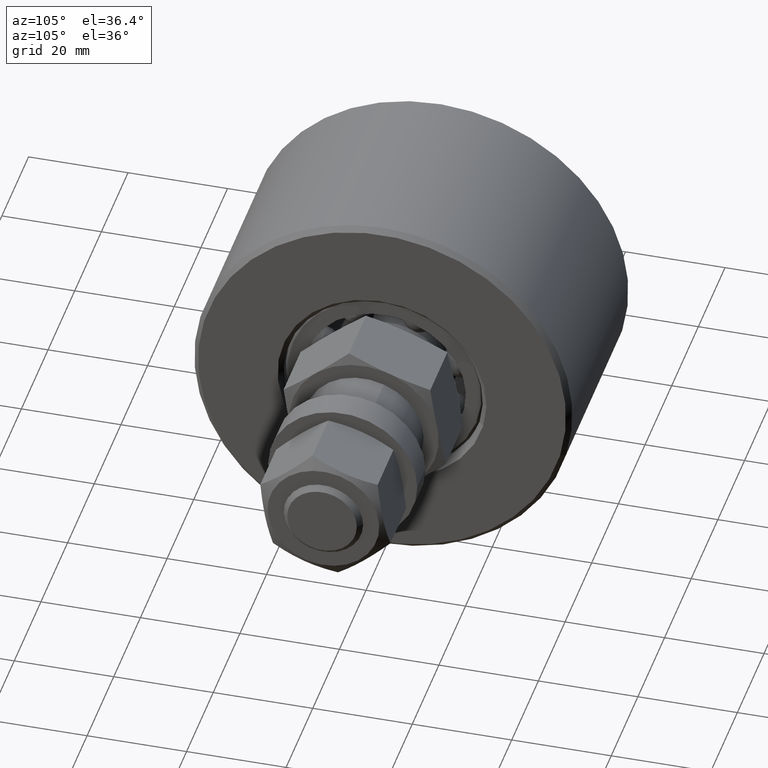
[diagram: clean part render]
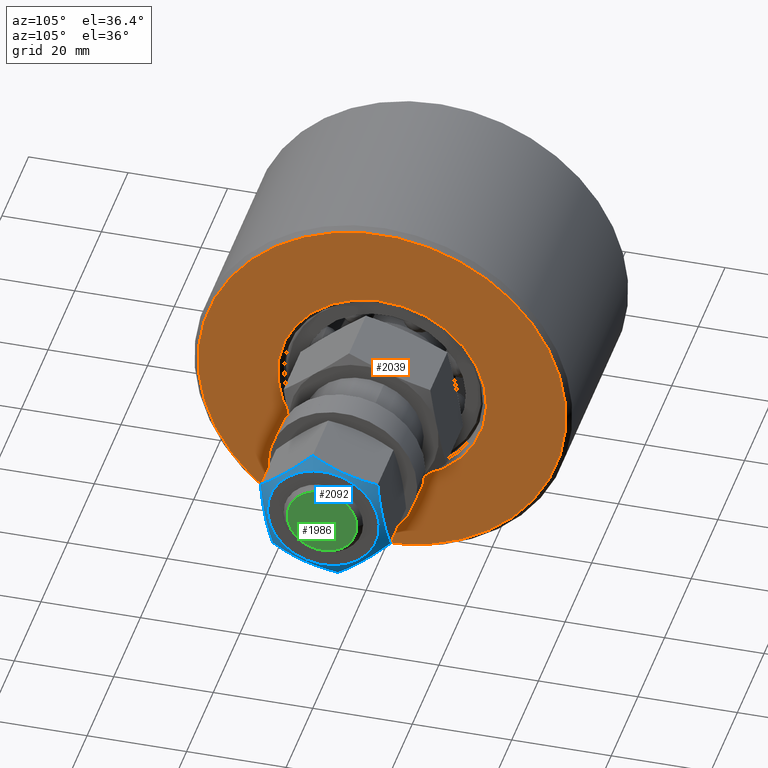
[diagram: same view with three faces highlighted in distinct colors, each labeled with its STEP entity id]
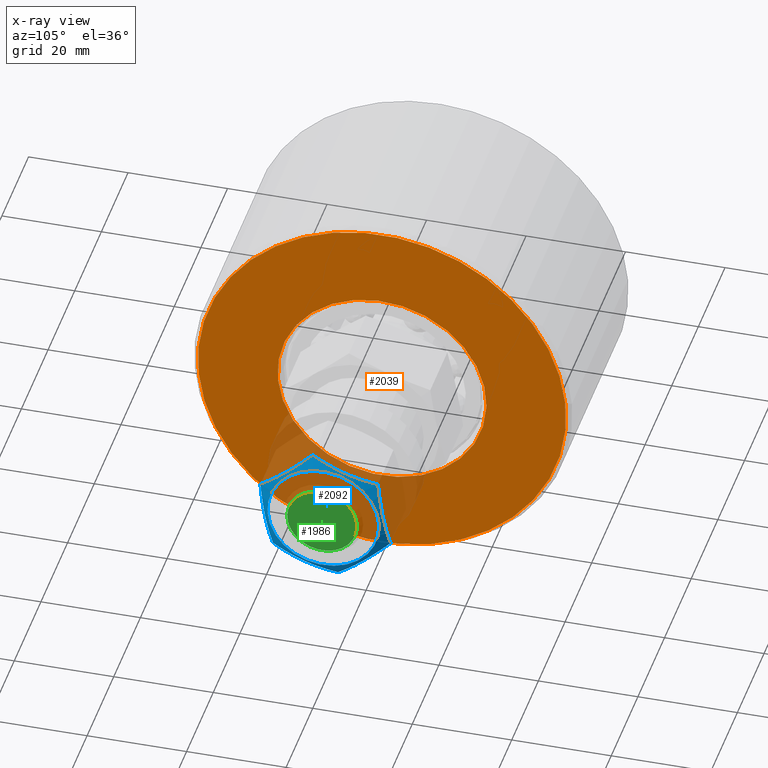
[diagram: x-ray of the same camera — body ghosted, the three highlighted faces saturated]
A machine part, auxiliary view with three faces highlighted in distinct colors.
The next image is the same camera in x-ray (body ghosted, the three faces saturated) — at least one of them is partly hidden behind the body in this view.
Their STEP definitions:

[orange] entity #2039 — the highlighted planar face has unit normal (1, 0, 0).
#165=FACE_BOUND('',#472,.T.);
#255=PLANE('',#2375);
#347=FACE_OUTER_BOUND('',#471,.T.);
#471=EDGE_LOOP('',(#1609));
#472=EDGE_LOOP('',(#1610));
#756=CIRCLE('',#2374,21.);
#757=CIRCLE('',#2376,37.);
#923=VERTEX_POINT('',#3464);
#924=VERTEX_POINT('',#3468);
#1177=EDGE_CURVE('',#923,#923,#756,.T.);
#1178=EDGE_CURVE('',#924,#924,#757,.T.);
#1609=ORIENTED_EDGE('',*,*,#1178,.F.);
#1610=ORIENTED_EDGE('',*,*,#1177,.F.);
#2039=ADVANCED_FACE('',(#347,#165),#255,.T.);
#2374=AXIS2_PLACEMENT_3D('',#3466,#2799,#2800);
#2375=AXIS2_PLACEMENT_3D('',#3467,#2801,#2802);
#2376=AXIS2_PLACEMENT_3D('',#3469,#2803,#2804);
#2799=DIRECTION('center_axis',(1.,0.,0.));
#2800=DIRECTION('ref_axis',(0.,-1.,0.));
#2801=DIRECTION('center_axis',(1.,0.,0.));
#2802=DIRECTION('ref_axis',(0.,0.,-1.));
#2803=DIRECTION('center_axis',(-1.,0.,0.));
#2804=DIRECTION('ref_axis',(0.,-1.,0.));
#3464=CARTESIAN_POINT('',(22.,21.,2.57175827820944E-15));
#3466=CARTESIAN_POINT('Origin',(22.,0.,0.));
#3467=CARTESIAN_POINT('Origin',(22.,29.,0.));
#3468=CARTESIAN_POINT('',(22.,37.,-4.53119315684521E-15));
#3469=CARTESIAN_POINT('Origin',(22.,0.,0.));

[blue] entity #2092 — the highlighted conical surface has half-angle 60 deg.
#226=(
BOUNDED_CURVE()
B_SPLINE_CURVE(2,(#4553,#4554,#4555),.UNSPECIFIED.,.F.,.F.)
B_SPLINE_CURVE_WITH_KNOTS((3,3),(0.,1.40212336569351),.UNSPECIFIED.)
CURVE()
GEOMETRIC_REPRESENTATION_ITEM()
RATIONAL_B_SPLINE_CURVE((1.,1.15470053837925,1.))
REPRESENTATION_ITEM('')
);
#227=(
BOUNDED_CURVE()
B_SPLINE_CURVE(2,(#4557,#4558,#4559),.UNSPECIFIED.,.F.,.F.)
B_SPLINE_CURVE_WITH_KNOTS((3,3),(0.,1.4021233656935),.UNSPECIFIED.)
CURVE()
GEOMETRIC_REPRESENTATION_ITEM()
RATIONAL_B_SPLINE_CURVE((1.,1.15470053837925,1.))
REPRESENTATION_ITEM('')
);
#228=(
BOUNDED_CURVE()
B_SPLINE_CURVE(2,(#4561,#4562,#4563),.UNSPECIFIED.,.F.,.F.)
B_SPLINE_CURVE_WITH_KNOTS((3,3),(0.,1.4021233656935),.UNSPECIFIED.)
CURVE()
GEOMETRIC_REPRESENTATION_ITEM()
RATIONAL_B_SPLINE_CURVE((1.,1.15470053837925,1.))
REPRESENTATION_ITEM('')
);
#229=(
BOUNDED_CURVE()
B_SPLINE_CURVE(2,(#4565,#4566,#4567),.UNSPECIFIED.,.F.,.F.)
B_SPLINE_CURVE_WITH_KNOTS((3,3),(0.,1.40212336569351),.UNSPECIFIED.)
CURVE()
GEOMETRIC_REPRESENTATION_ITEM()
RATIONAL_B_SPLINE_CURVE((1.,1.15470053837925,1.))
REPRESENTATION_ITEM('')
);
#230=(
BOUNDED_CURVE()
B_SPLINE_CURVE(2,(#4569,#4570,#4571),.UNSPECIFIED.,.F.,.F.)
B_SPLINE_CURVE_WITH_KNOTS((3,3),(0.,1.40212336569351),.UNSPECIFIED.)
CURVE()
GEOMETRIC_REPRESENTATION_ITEM()
RATIONAL_B_SPLINE_CURVE((1.,1.15470053837925,1.))
REPRESENTATION_ITEM('')
);
#231=(
BOUNDED_CURVE()
B_SPLINE_CURVE(2,(#4572,#4573,#4574),.UNSPECIFIED.,.F.,.F.)
B_SPLINE_CURVE_WITH_KNOTS((3,3),(0.,1.40212336569351),.UNSPECIFIED.)
CURVE()
GEOMETRIC_REPRESENTATION_ITEM()
RATIONAL_B_SPLINE_CURVE((1.,1.15470053837925,1.))
REPRESENTATION_ITEM('')
);
#400=FACE_OUTER_BOUND('',#549,.T.);
#549=EDGE_LOOP('',(#1921,#1922,#1923,#1924,#1925,#1926,#1927,#1928,#1929));
#623=LINE('',#4551,#697);
#697=VECTOR('',#3088,12.5532032302755);
#834=CIRCLE('',#2507,11.25);
#1032=VERTEX_POINT('',#4521);
#1039=VERTEX_POINT('',#4550);
#1040=VERTEX_POINT('',#4552);
#1041=VERTEX_POINT('',#4556);
#1042=VERTEX_POINT('',#4560);
#1043=VERTEX_POINT('',#4564);
#1044=VERTEX_POINT('',#4568);
#1327=EDGE_CURVE('',#1032,#1032,#834,.T.);
#1335=EDGE_CURVE('',#1032,#1039,#623,.T.);
#1336=EDGE_CURVE('',#1040,#1039,#226,.T.);
#1337=EDGE_CURVE('',#1041,#1040,#227,.T.);
#1338=EDGE_CURVE('',#1042,#1041,#228,.T.);
#1339=EDGE_CURVE('',#1043,#1042,#229,.T.);
#1340=EDGE_CURVE('',#1044,#1043,#230,.T.);
#1341=EDGE_CURVE('',#1039,#1044,#231,.T.);
#1921=ORIENTED_EDGE('',*,*,#1327,.F.);
#1922=ORIENTED_EDGE('',*,*,#1335,.T.);
#1923=ORIENTED_EDGE('',*,*,#1336,.F.);
#1924=ORIENTED_EDGE('',*,*,#1337,.F.);
#1925=ORIENTED_EDGE('',*,*,#1338,.F.);
#1926=ORIENTED_EDGE('',*,*,#1339,.F.);
#1927=ORIENTED_EDGE('',*,*,#1340,.F.);
#1928=ORIENTED_EDGE('',*,*,#1341,.F.);
#1929=ORIENTED_EDGE('',*,*,#1335,.F.);
#1983=CONICAL_SURFACE('',#2509,12.5532032302755,1.0471975511966);
#2092=ADVANCED_FACE('',(#400),#1983,.T.);
#2507=AXIS2_PLACEMENT_3D('',#4522,#3081,#3082);
#2509=AXIS2_PLACEMENT_3D('',#4549,#3086,#3087);
#3081=DIRECTION('center_axis',(1.,0.,0.));
#3082=DIRECTION('ref_axis',(-1.60283974546582E-16,1.,0.));
#3086=DIRECTION('center_axis',(-1.,0.,0.));
#3087=DIRECTION('ref_axis',(-1.60283974546582E-16,1.,0.));
#3088=DIRECTION('',(-0.5,-0.866025403784438,1.06057523872491E-16));
#4521=CARTESIAN_POINT('',(14.8,-11.25,1.37772764904077E-15));
#4522=CARTESIAN_POINT('Origin',(14.8,0.,0.));
#4549=CARTESIAN_POINT('Origin',(14.0475952641916,0.,0.));
#4550=CARTESIAN_POINT('',(13.2951905283833,-13.856406460551,2.22044604925031E-15));
#4551=CARTESIAN_POINT('',(14.0475952641916,-12.5532032302755,1.53732401550031E-15));
#4552=CARTESIAN_POINT('',(13.2951905283833,-6.92820323027545,-12.));
#4553=CARTESIAN_POINT('Ctrl Pts',(13.2951905283833,-6.92820323027548,-12.));
#4554=CARTESIAN_POINT('Ctrl Pts',(15.2951905283833,-10.3923048454133,-6.00000000000001));
#4555=CARTESIAN_POINT('Ctrl Pts',(13.2951905283833,-13.856406460551,8.57836111326274E-15));
#4556=CARTESIAN_POINT('',(13.2951905283833,6.92820323027554,-12.));
#4557=CARTESIAN_POINT('Ctrl Pts',(13.2951905283833,6.92820323027552,-12.));
#4558=CARTESIAN_POINT('Ctrl Pts',(15.2951905283833,3.05311331771918E-14,
-12.));
#4559=CARTESIAN_POINT('Ctrl Pts',(13.2951905283833,-6.92820323027546,-12.));
#4560=CARTESIAN_POINT('',(13.2951905283833,13.856406460551,0.));
#4561=CARTESIAN_POINT('Ctrl Pts',(13.2951905283833,13.856406460551,1.34802817494129E-14));
#4562=CARTESIAN_POINT('Ctrl Pts',(15.2951905283833,10.3923048454133,-5.99999999999999));
#4563=CARTESIAN_POINT('Ctrl Pts',(13.2951905283833,6.92820323027554,-12.));
#4564=CARTESIAN_POINT('',(13.2951905283833,6.92820323027552,12.));
#4565=CARTESIAN_POINT('Ctrl Pts',(13.2951905283833,6.92820323027549,12.));
#4566=CARTESIAN_POINT('Ctrl Pts',(15.2951905283833,10.3923048454133,6.00000000000001));
#4567=CARTESIAN_POINT('Ctrl Pts',(13.2951905283833,13.856406460551,-9.80384127230028E-15));
#4568=CARTESIAN_POINT('',(13.2951905283833,-6.92820323027552,12.));
#4569=CARTESIAN_POINT('Ctrl Pts',(13.2951905283833,-6.92820323027553,12.));
#4570=CARTESIAN_POINT('Ctrl Pts',(15.2951905283833,0.,12.));
#4571=CARTESIAN_POINT('Ctrl Pts',(13.2951905283833,6.92820323027553,12.));
#4572=CARTESIAN_POINT('Ctrl Pts',(13.2951905283833,-13.856406460551,-1.10293214313378E-14));
#4573=CARTESIAN_POINT('Ctrl Pts',(15.2951905283833,-10.3923048454133,6.));
#4574=CARTESIAN_POINT('Ctrl Pts',(13.2951905283833,-6.92820323027551,12.));

[green] entity #1986 — the highlighted planar face has unit normal (1, 0, 0).
#232=PLANE('',#2270);
#294=FACE_OUTER_BOUND('',#409,.T.);
#409=EDGE_LOOP('',(#1358));
#704=CIRCLE('',#2265,7.00000000000001);
#835=VERTEX_POINT('',#3128);
#1045=EDGE_CURVE('',#835,#835,#704,.T.);
#1358=ORIENTED_EDGE('',*,*,#1045,.F.);
#1986=ADVANCED_FACE('',(#294),#232,.T.);
#2265=AXIS2_PLACEMENT_3D('',#3129,#2531,#2532);
#2270=AXIS2_PLACEMENT_3D('',#3139,#2543,#2544);
#2531=DIRECTION('center_axis',(-1.,0.,0.));
#2532=DIRECTION('ref_axis',(0.,-1.,0.));
#2543=DIRECTION('center_axis',(1.,0.,0.));
#2544=DIRECTION('ref_axis',(0.,0.,-1.));
#3128=CARTESIAN_POINT('',(93.,7.00000000000001,-8.57252759403148E-16));
#3129=CARTESIAN_POINT('Origin',(93.,0.,0.));
#3139=CARTESIAN_POINT('Origin',(93.,4.,0.));